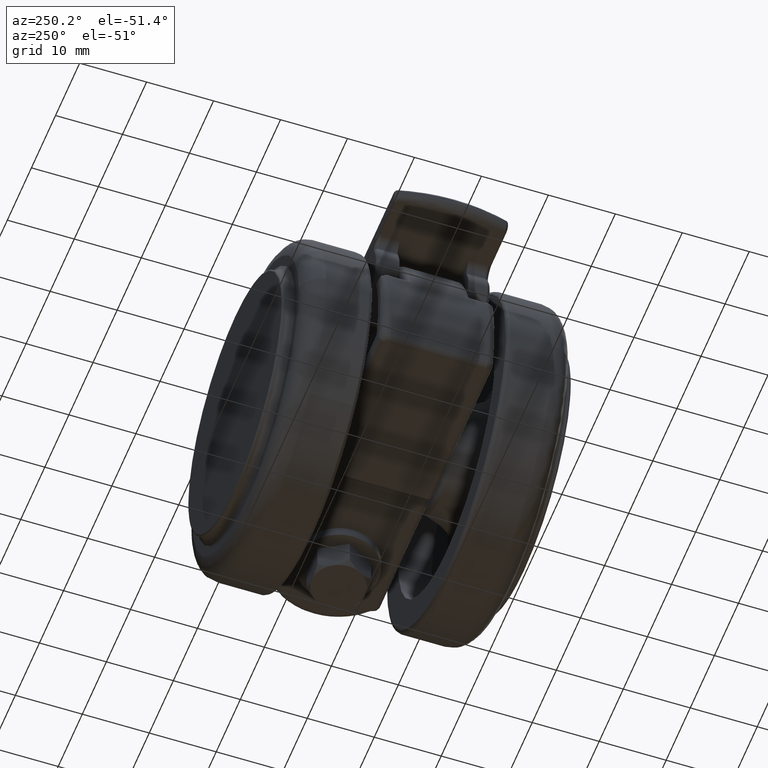
[diagram: clean part render]
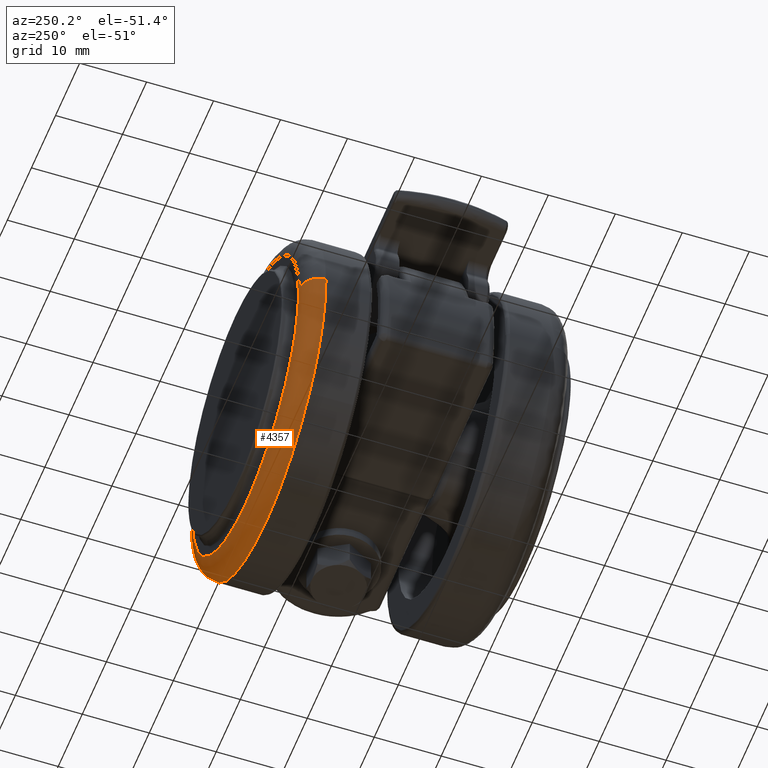
[diagram: same view with one face highlighted and labeled with its STEP entity id]
A machine part, auxiliary view. The second image highlights one B-rep face of the part: STEP entity #4357.
In plain terms, the highlighted face is a freeform B-spline surface patch.
Its self-contained STEP definition (entity closure, byte-faithful):
#4061=CARTESIAN_POINT('',(-18.134359913672380,17.000000000121592,-17.208863719647240));
#4062=VERTEX_POINT('',#4061);
#4068=CARTESIAN_POINT('',(2.081831E-015,17.0,-25.0));
#4069=VERTEX_POINT('',#4068);
#4070=CARTESIAN_POINT('',(-18.134359913672395,17.000000000121595,-17.208863719647251));
#4071=CARTESIAN_POINT('',(-10.740848198450356,17.000000000050179,-25.000000000000004));
#4072=CARTESIAN_POINT('',(2.081831E-015,17.0,-25.0));
#4080=(BOUNDED_CURVE()B_SPLINE_CURVE(2,(#4070,#4071,#4072),.UNSPECIFIED.,.F.,.U.)B_SPLINE_CURVE_WITH_KNOTS((3,3),(0.371049521060892,0.500000000000000),.UNSPECIFIED.)CURVE()GEOMETRIC_REPRESENTATION_ITEM()RATIONAL_B_SPLINE_CURVE((0.853699661783995,0.848925116623953,1.0))REPRESENTATION_ITEM(''));
#4081=EDGE_CURVE('',#4062,#4069,#4080,.T.);
#4083=CARTESIAN_POINT('',(24.998026105095391,17.000000000236550,-0.314150997084988));
#4084=VERTEX_POINT('',#4083);
#4085=CARTESIAN_POINT('',(2.081831E-015,17.0,-25.0));
#4086=CARTESIAN_POINT('',(24.687798247681695,17.000000000118270,-24.999999999999996));
#4087=CARTESIAN_POINT('',(24.998026105095391,17.000000000236554,-0.314150997084988));
#4095=(BOUNDED_CURVE()B_SPLINE_CURVE(2,(#4085,#4086,#4087),.UNSPECIFIED.,.F.,.U.)B_SPLINE_CURVE_WITH_KNOTS((3,3),(0.500000000000000,0.747784295921720),.UNSPECIFIED.)CURVE()GEOMETRIC_REPRESENTATION_ITEM()RATIONAL_B_SPLINE_CURVE((1.0,0.709702639984250,0.994854295643993))REPRESENTATION_ITEM(''));
#4096=EDGE_CURVE('',#4069,#4084,#4095,.T.);
#4162=CARTESIAN_POINT('',(-24.998026105095381,17.000000000236561,0.314150997084981));
#4163=VERTEX_POINT('',#4162);
#4177=CARTESIAN_POINT('',(-24.998026105095384,17.000000000236561,0.314150997084981));
#4178=CARTESIAN_POINT('',(-24.999999999999993,17.000000000235826,0.157081699797828));
#4179=CARTESIAN_POINT('',(-24.999999999999989,17.000000000235080,1.434278E-015));
#4180=CARTESIAN_POINT('',(-25.0,17.000000000187892,-9.973988111848925));
#4181=CARTESIAN_POINT('',(-18.134359913672395,17.000000000121595,-17.208863719647251));
#4189=(BOUNDED_CURVE()B_SPLINE_CURVE(2,(#4177,#4178,#4179,#4180,#4181),.UNSPECIFIED.,.F.,.U.)B_SPLINE_CURVE_WITH_KNOTS((3,2,3),(0.247784295921720,0.250000000000000,0.371049521060892),.UNSPECIFIED.)CURVE()GEOMETRIC_REPRESENTATION_ITEM()RATIONAL_B_SPLINE_CURVE((0.994854295643993,0.997404141202298,1.0,0.858181664562594,0.853699661783995))REPRESENTATION_ITEM(''));
#4190=EDGE_CURVE('',#4163,#4062,#4189,.T.);
#4227=CARTESIAN_POINT('',(21.998262973218559,20.0,-0.276452877469161));
#4228=VERTEX_POINT('',#4227);
#4229=CARTESIAN_POINT('',(21.998262973218555,19.999999999999996,-0.276452877469161));
#4230=CARTESIAN_POINT('',(24.998026104858695,19.999999999265015,-0.314150997094511));
#4231=CARTESIAN_POINT('',(24.998026105095388,17.000000000236557,-0.314150997084988));
#4239=(BOUNDED_CURVE()B_SPLINE_CURVE(2,(#4229,#4230,#4231),.UNSPECIFIED.,.F.,.U.)B_SPLINE_CURVE_WITH_KNOTS((3,3),(-1.734750791403828,-0.265249208423534),.UNSPECIFIED.)CURVE()GEOMETRIC_REPRESENTATION_ITEM()RATIONAL_B_SPLINE_CURVE((0.889029723486223,0.628638946276932,0.889029723547404))REPRESENTATION_ITEM(''));
#4240=EDGE_CURVE('',#4228,#4084,#4239,.T.);
#4259=CARTESIAN_POINT('',(-21.998262973218552,20.0,0.276452877469155));
#4260=VERTEX_POINT('',#4259);
#4274=CARTESIAN_POINT('',(-21.998262973218548,20.000000000000004,0.276452877469155));
#4275=CARTESIAN_POINT('',(-24.998026104858678,19.999999999265015,0.314150997094505));
#4276=CARTESIAN_POINT('',(-24.998026105095388,17.000000000236565,0.314150997084981));
#4284=(BOUNDED_CURVE()B_SPLINE_CURVE(2,(#4274,#4275,#4276),.UNSPECIFIED.,.F.,.U.)B_SPLINE_CURVE_WITH_KNOTS((3,3),(-1.734750791403826,-0.265249208423535),.UNSPECIFIED.)CURVE()GEOMETRIC_REPRESENTATION_ITEM()RATIONAL_B_SPLINE_CURVE((0.889029723486222,0.628638946276933,0.889029723547404))REPRESENTATION_ITEM(''));
#4285=EDGE_CURVE('',#4260,#4163,#4284,.T.);
#4291=CARTESIAN_POINT('',(-21.782012717016631,19.992738098923134,0.882999496539471));
#4292=CARTESIAN_POINT('',(-21.785818142494566,19.992738098923137,0.580189299145505));
#4293=CARTESIAN_POINT('',(-22.063499610920406,19.992738098923116,-21.515836691689966));
#4294=CARTESIAN_POINT('',(-0.273831459615216,19.992738098923134,-21.789668151305200));
#4295=CARTESIAN_POINT('',(21.515836691689980,19.992738098923116,-22.063499610920406));
#4296=CARTESIAN_POINT('',(21.793518160115667,19.992738098923130,0.032526379901734));
#4297=CARTESIAN_POINT('',(21.797323585593436,19.992738098923130,0.335336577282675));
#4298=CARTESIAN_POINT('',(-25.221754861550810,20.232611387236886,1.022439805445199));
#4299=CARTESIAN_POINT('',(-25.226161227013694,20.232611387236876,0.671810840736078));
#4300=CARTESIAN_POINT('',(-25.547693218442607,20.232611387236872,-24.913545214075665));
#4301=CARTESIAN_POINT('',(-0.317074002183468,20.232611387236869,-25.230619216259143));
#4302=CARTESIAN_POINT('',(24.913545214075665,20.232611387236865,-25.547693218442607));
#4303=CARTESIAN_POINT('',(25.235077205504400,20.232611387236879,0.037662836353700));
#4304=CARTESIAN_POINT('',(25.239483570967092,20.232611387236869,0.388291801047738));
#4305=CARTESIAN_POINT('',(-24.981984685709506,16.791388624474095,1.012719999139712));
#4306=CARTESIAN_POINT('',(-24.986349162135426,16.791388624474092,0.665424282611967));
#4307=CARTESIAN_POINT('',(-25.304824515255593,16.791388624474092,-24.676705027911012));
#4308=CARTESIAN_POINT('',(-0.314059743672292,16.791388624474095,-24.990764771583301));
#4309=CARTESIAN_POINT('',(24.676705027911012,16.791388624474092,-25.304824515255607));
#4310=CARTESIAN_POINT('',(24.995180381030988,16.791388624474088,0.037304795252088));
#4311=CARTESIAN_POINT('',(24.999544857456712,16.791388624474084,0.384600511764894));
#4319=(BOUNDED_SURFACE()B_SPLINE_SURFACE(2,2,((#4291,#4298,#4305),(#4292,#4299,#4306),(#4293,#4300,#4307),(#4294,#4301,#4308),(#4295,#4302,#4309),(#4296,#4303,#4310),(#4297,#4304,#4311)),.UNSPECIFIED.,.F.,.F.,.U.)B_SPLINE_SURFACE_WITH_KNOTS((3,1,2,1,3),(3,3),(0.0,0.828186486355841,42.237510802388911,83.646835118421990,84.475021604741556),(0.0,5.468189893454063),.UNSPECIFIED.)GEOMETRIC_REPRESENTATION_ITEM()RATIONAL_B_SPLINE_SURFACE(((0.927077710673764,0.608371547715785,0.927077722426726),(0.921709902957348,0.604849058230083,0.921709914642260),(0.647951709431553,0.425202094466791,0.647951717645915),(0.916342095240933,0.601326568744382,0.916342106857795),(0.647951709431553,0.425202094466791,0.647951717645915),(0.921709902957113,0.604849058229929,0.921709914642025),(0.927077710673294,0.608371547715476,0.927077722426256)))REPRESENTATION_ITEM('')SURFACE());
#4320=ORIENTED_EDGE('',*,*,#4096,.F.);
#4321=ORIENTED_EDGE('',*,*,#4081,.F.);
#4322=ORIENTED_EDGE('',*,*,#4190,.F.);
#4323=ORIENTED_EDGE('',*,*,#4285,.F.);
#4324=CARTESIAN_POINT('',(2.449213E-015,20.0,-22.0));
#4325=VERTEX_POINT('',#4324);
#4326=CARTESIAN_POINT('',(-21.998262973218552,20.0,0.276452877469155));
#4327=CARTESIAN_POINT('',(-22.000000000732637,20.000000000000004,0.138231895843864));
#4328=CARTESIAN_POINT('',(-22.000000000730331,20.0,9.176786E-012));
#4329=CARTESIAN_POINT('',(-22.000000000362864,19.999999999999996,-21.999999999995435));
#4330=CARTESIAN_POINT('',(2.449213E-015,20.0,-22.0));
#4338=(BOUNDED_CURVE()B_SPLINE_CURVE(2,(#4326,#4327,#4328,#4329,#4330),.UNSPECIFIED.,.F.,.U.)B_SPLINE_CURVE_WITH_KNOTS((3,2,3),(0.247784295921519,0.250000000000000,0.500000000000000),.UNSPECIFIED.)CURVE()GEOMETRIC_REPRESENTATION_ITEM()RATIONAL_B_SPLINE_CURVE((0.994854295643531,0.997404141202062,1.0,0.707106781186548,1.0))REPRESENTATION_ITEM(''));
#4339=EDGE_CURVE('',#4260,#4325,#4338,.T.);
#4340=ORIENTED_EDGE('',*,*,#4339,.T.);
#4341=CARTESIAN_POINT('',(2.449213E-015,20.0,-22.0));
#4342=CARTESIAN_POINT('',(21.725262458302527,19.999999999999993,-22.000000000004615));
#4343=CARTESIAN_POINT('',(21.998262973218559,20.000000000000007,-0.276452877469161));
#4351=(BOUNDED_CURVE()B_SPLINE_CURVE(2,(#4341,#4342,#4343),.UNSPECIFIED.,.F.,.U.)B_SPLINE_CURVE_WITH_KNOTS((3,3),(0.500000000000000,0.747784295921519),.UNSPECIFIED.)CURVE()GEOMETRIC_REPRESENTATION_ITEM()RATIONAL_B_SPLINE_CURVE((1.0,0.709702639984485,0.994854295643531))REPRESENTATION_ITEM(''));
#4352=EDGE_CURVE('',#4325,#4228,#4351,.T.);
#4353=ORIENTED_EDGE('',*,*,#4352,.T.);
#4354=ORIENTED_EDGE('',*,*,#4240,.T.);
#4355=EDGE_LOOP('',(#4320,#4321,#4322,#4323,#4340,#4353,#4354));
#4356=FACE_OUTER_BOUND('',#4355,.T.);
#4357=ADVANCED_FACE('',(#4356),#4319,.T.);